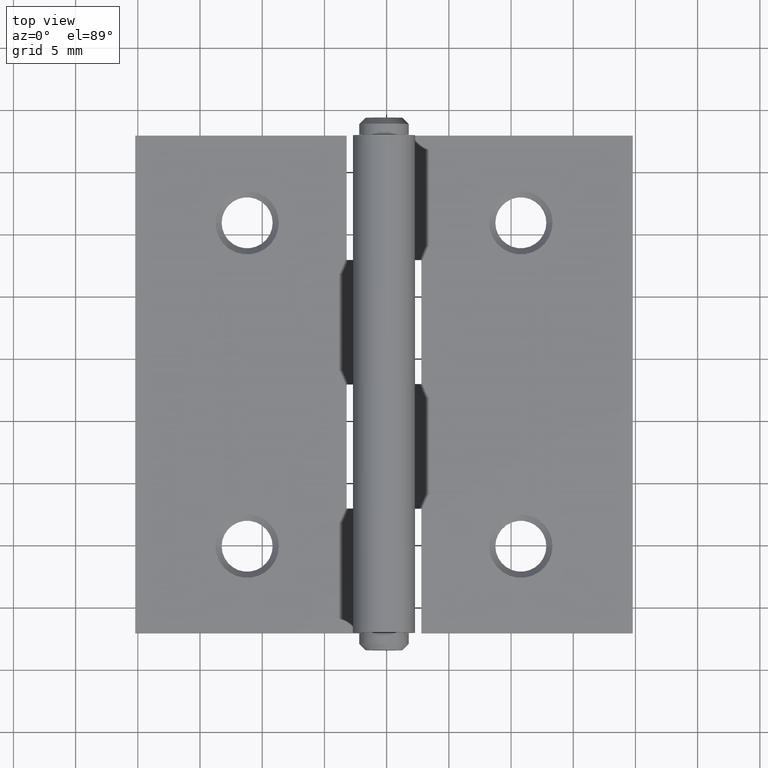
[diagram: clean part render]
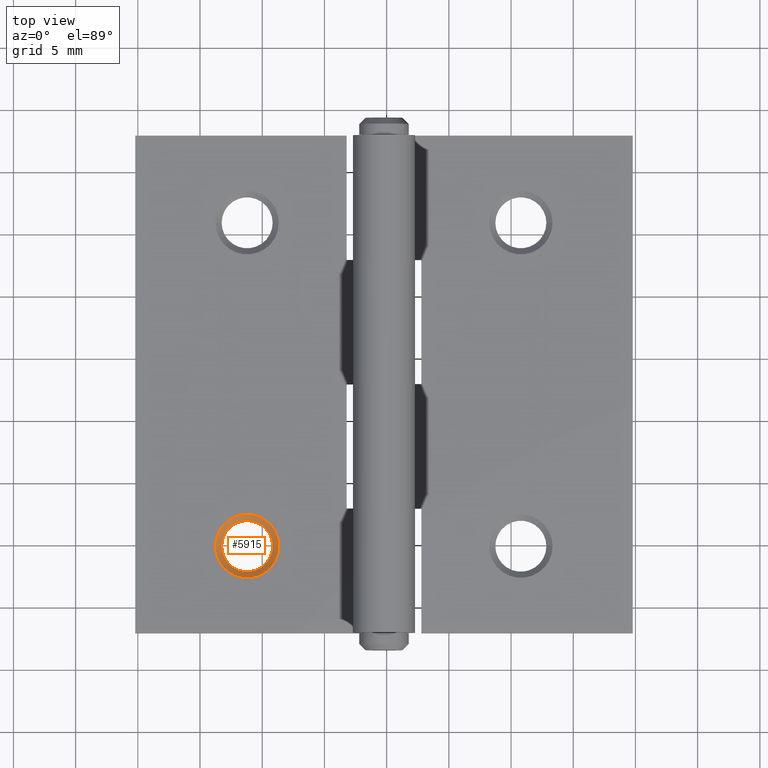
[diagram: same view with one face highlighted and labeled with its STEP entity id]
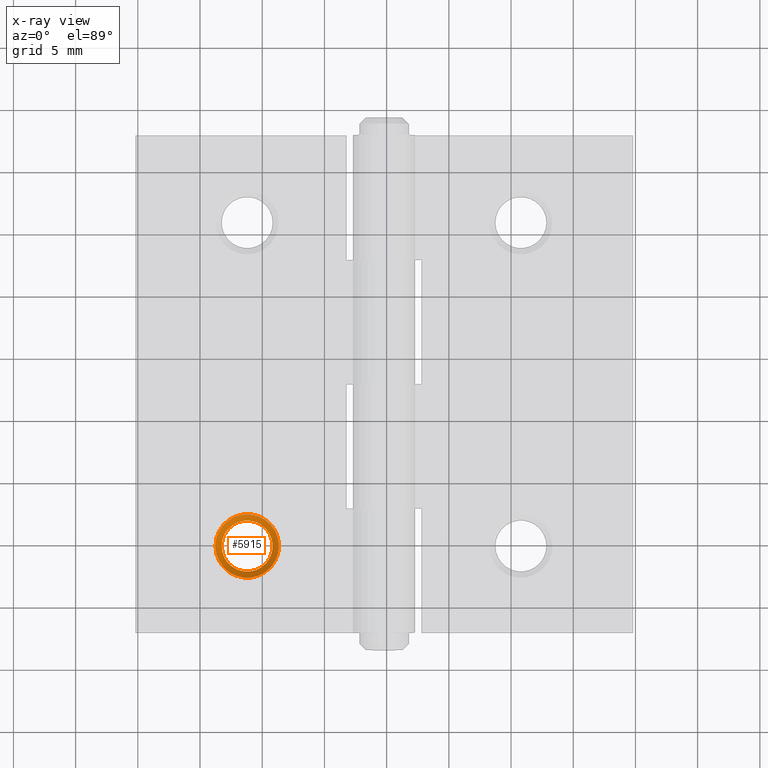
[diagram: x-ray of the same camera — body ghosted, the highlighted face saturated]
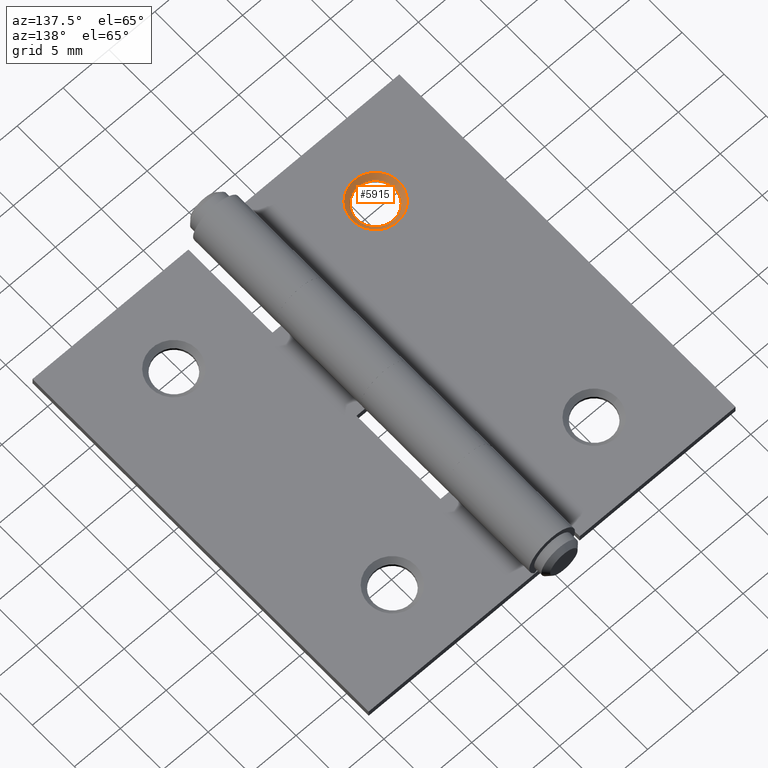
[diagram: same view with one face highlighted and labeled with its STEP entity id]
A machine part, top view. The second image highlights one B-rep face of the part: STEP entity #5915.
The next image is the same camera in x-ray: the body ghosted, the highlighted face saturated — about 0% of this face is hidden behind the body in this view.
A second angle (auxiliary view) of the same face is appended — the face is thin or edge-on in the first view.
In plain terms, the highlighted conical surface has half-angle 45 deg.
Its self-contained STEP definition (entity closure, byte-faithful):
#658 = DIRECTION ( 'NONE',  ( -1.000000000000000000, 0.000000000000000000, 0.000000000000000000 ) ) ;
#850 = AXIS2_PLACEMENT_3D ( 'NONE', #4729, #8113, #658 ) ;
#1030 = EDGE_LOOP ( 'NONE', ( #8476 ) ) ;
#1283 = DIRECTION ( 'NONE',  ( -1.301042606982605567E-16, 0.000000000000000000, -1.000000000000000000 ) ) ;
#2027 = EDGE_LOOP ( 'NONE', ( #8273 ) ) ;
#2355 = CARTESIAN_POINT ( 'NONE',  ( -16.05000000000004334, -13.00000000000000178, 0.8000000000000017097 ) ) ;
#2535 = VERTEX_POINT ( 'NONE', #8849 ) ;
#3048 = AXIS2_PLACEMENT_3D ( 'NONE', #6129, #1283, #8676 ) ;
#3853 = AXIS2_PLACEMENT_3D ( 'NONE', #10275, #6286, #5468 ) ;
#4314 = EDGE_CURVE ( 'NONE', #2535, #2535, #9204, .T. ) ;
#4729 = CARTESIAN_POINT ( 'NONE',  ( -13.50000000000000355, -13.00000000000000178, 0.2999999999999627409 ) ) ;
#5468 = DIRECTION ( 'NONE',  ( 1.000000000000000000, 0.000000000000000000, 0.000000000000000000 ) ) ;
#5915 = ADVANCED_FACE ( 'NONE', ( #10333, #9449 ), #7202, .F. ) ;
#6129 = CARTESIAN_POINT ( 'NONE',  ( -13.50000000000000355, -13.00000000000000178, 0.8000000000000013767 ) ) ;
#6286 = DIRECTION ( 'NONE',  ( 0.000000000000000000, 0.000000000000000000, 1.000000000000000000 ) ) ;
#7202 = CONICAL_SURFACE ( 'NONE', #3853, 2.049999999999999822, 0.7853981633974496113 ) ;
#7256 = CIRCLE ( 'NONE', #3048, 2.550000000000040234 ) ;
#8113 = DIRECTION ( 'NONE',  ( 0.000000000000000000, 0.000000000000000000, 1.000000000000000000 ) ) ;
#8273 = ORIENTED_EDGE ( 'NONE', *, *, #4314, .F. ) ;
#8476 = ORIENTED_EDGE ( 'NONE', *, *, #10086, .F. ) ;
#8676 = DIRECTION ( 'NONE',  ( -1.000000000000000000, 0.000000000000000000, 1.275531967629985031E-16 ) ) ;
#8849 = CARTESIAN_POINT ( 'NONE',  ( -15.55000000000000249, -13.00000000000000178, 0.2999999999999627409 ) ) ;
#9204 = CIRCLE ( 'NONE', #850, 2.049999999999999822 ) ;
#9449 = FACE_BOUND ( 'NONE', #2027, .T. ) ;
#10086 = EDGE_CURVE ( 'NONE', #10393, #10393, #7256, .T. ) ;
#10275 = CARTESIAN_POINT ( 'NONE',  ( -13.50000000000000355, -13.00000000000000178, 0.2999999999999627409 ) ) ;
#10333 = FACE_OUTER_BOUND ( 'NONE', #1030, .T. ) ;
#10393 = VERTEX_POINT ( 'NONE', #2355 ) ;